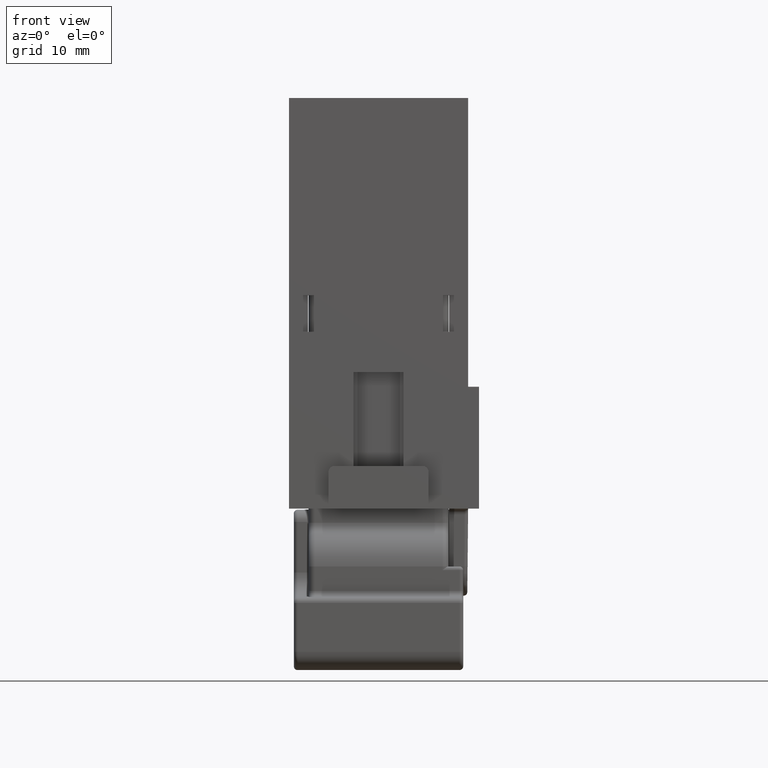
[diagram: clean part render]
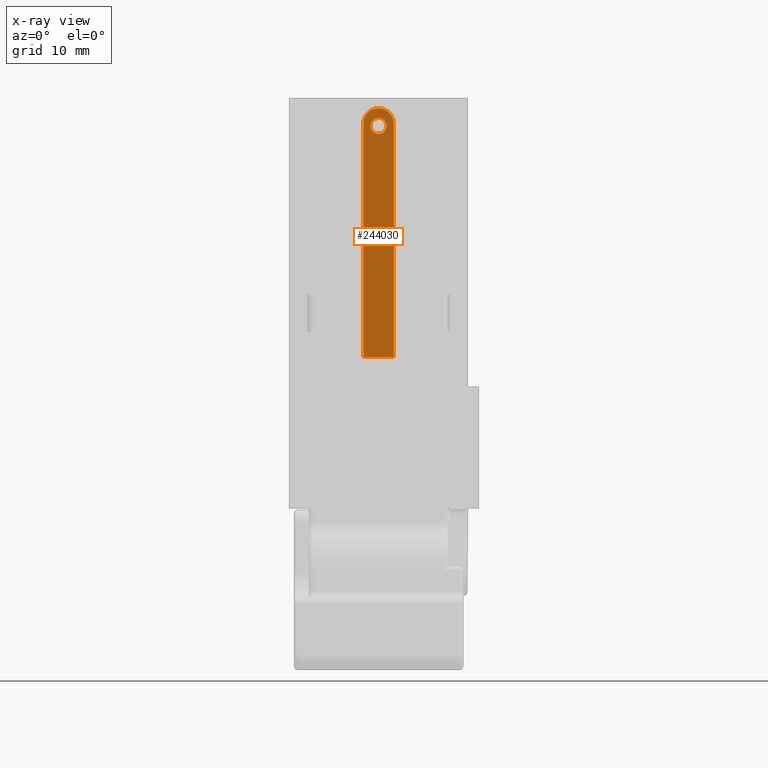
[diagram: x-ray — body ghosted, one internal face saturated and labeled with its STEP entity id]
A machine part, front view, then the same camera in x-ray: the body is ghosted and one INTERNAL B-rep face — a face not visible from any outside direction — is saturated and labeled: STEP entity #244030.
In plain terms, the highlighted planar face has unit normal (0, -1, 0).
Its self-contained STEP definition (entity closure, byte-faithful):
#7930=CARTESIAN_POINT('',(74.7000000000202,58.9499999216629,
-1.25000003295154));
#7940=VERTEX_POINT('',#7930);
#7990=CARTESIAN_POINT('',(74.7000000000202,58.9499999216629,
-0.600000032951539));
#8000=DIRECTION('',(-1.,0.,0.));
#8010=DIRECTION('',(0.,0.,-1.));
#8020=AXIS2_PLACEMENT_3D('',#7990,#8000,#8010);
#8030=CIRCLE('',#8020,0.65);
#8040=CARTESIAN_POINT('',(74.7000000000202,58.9499999216629,
0.049999967048461));
#8050=VERTEX_POINT('',#8040);
#8060=EDGE_CURVE('',#8050,#7940,#8030,.T.);
#242000=CARTESIAN_POINT('',(74.7000000000202,60.1999999217759,
-19.5636363636362));
#242010=VERTEX_POINT('',#242000);
#242040=CARTESIAN_POINT('',(74.7000000000202,58.9499999999884,
-19.5636363636362));
#242050=DIRECTION('',(0.,1.,0.));
#242060=VECTOR('',#242050,1.);
#242070=LINE('',#242040,#242060);
#242080=CARTESIAN_POINT('',(74.7000000000202,57.6999999217759,
-19.5636363636362));
#242090=VERTEX_POINT('',#242080);
#242100=EDGE_CURVE('',#242090,#242010,#242070,.T.);
#243180=CARTESIAN_POINT('',(74.7000000000202,57.6999999217759,
-0.399999999999828));
#243190=VERTEX_POINT('',#243180);
#243240=CARTESIAN_POINT('',(74.7000000000202,58.9499999217759,
-0.399999999999828));
#243250=DIRECTION('',(-1.,0.,0.));
#243260=DIRECTION('',(0.,0.,1.));
#243270=AXIS2_PLACEMENT_3D('',#243240,#243250,#243260);
#243280=CIRCLE('',#243270,1.25);
#243290=CARTESIAN_POINT('',(74.7000000000202,60.1999999217759,
-0.399999999999828));
#243300=VERTEX_POINT('',#243290);
#243310=EDGE_CURVE('',#243190,#243300,#243280,.T.);
#243650=CARTESIAN_POINT('',(74.7000000000202,60.1999999217759,
-8.82249999999974));
#243660=DIRECTION('',(0.,0.,1.));
#243670=VECTOR('',#243660,1.);
#243680=LINE('',#243650,#243670);
#243690=EDGE_CURVE('',#242010,#243300,#243680,.T.);
#243820=CARTESIAN_POINT('',(74.7000000000202,57.6999999217759,
-31.7724999999998));
#243830=DIRECTION('',(-1.,0.,0.));
#243840=DIRECTION('',(0.,-1.,0.));
#243850=AXIS2_PLACEMENT_3D('',#243820,#243830,#243840);
#243860=PLANE('',#243850);
#243870=ORIENTED_EDGE('',*,*,#243310,.T.);
#243880=CARTESIAN_POINT('',(74.7000000000202,57.6999999217759,
-8.82249999999974));
#243890=DIRECTION('',(0.,0.,1.));
#243900=VECTOR('',#243890,1.);
#243910=LINE('',#243880,#243900);
#243920=EDGE_CURVE('',#242090,#243190,#243910,.T.);
#243930=ORIENTED_EDGE('',*,*,#243920,.T.);
#243940=ORIENTED_EDGE('',*,*,#242100,.F.);
#243950=ORIENTED_EDGE('',*,*,#243690,.F.);
#243960=EDGE_LOOP('',(#243950,#243940,#243930,#243870));
#243970=FACE_OUTER_BOUND('',#243960,.T.);
#243980=EDGE_CURVE('',#7940,#8050,#8030,.T.);
#243990=ORIENTED_EDGE('',*,*,#243980,.F.);
#244000=ORIENTED_EDGE('',*,*,#8060,.F.);
#244010=EDGE_LOOP('',(#244000,#243990));
#244020=FACE_BOUND('',#244010,.T.);
#244030=ADVANCED_FACE('',(#243970,#244020),#243860,.T.);